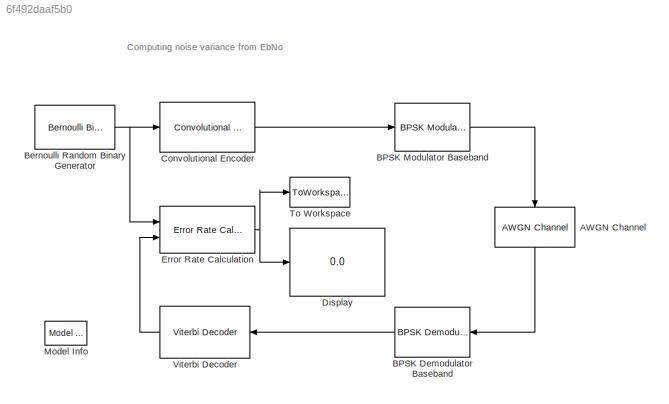
MODEL slx_6f492daaf5b0
KIND model
CONFIG PreLoadFcn = Ts = 1e-3; % Sample time\nEibNo = 4; % EbNo of information bits in dB\ncodeRate = 1/2; % from Trellis structure\nEbNo = EibNo - 10*log10(1/codeRate); %EbNo of coded bits in dB\nPi = 1; % input signal power in watts\n
BLOCK [Reference] AWGN Channel  REF=commchan3/AWGN
Channel
  EbNodB = EbNo
  EsNodB = -1
  InputProcessing = Columns as channels (frame based)
  Ports = [1, 1]
  Ps = Pi
  SNRdB = 10
  SourceBlock = commchan3/AWGN\nChannel
  SourceType = AWGN Channel
  Tsym = codeRate * Ts
  UserDataPersistent = on
  bitsPerSym = 1
  noiseMode = Signal to noise ratio  (Eb/No)
  seed = 1237
  variance = 1
BLOCK [Reference] BPSK Demodulator Baseband  REF=commdigbbndpm3/BPSK
Demodulator
Baseband
  DecType = Log-likelihood ratio
  Ph = 0
  Ports = [1, 1]
  SourceBlock = commdigbbndpm3/BPSK\nDemodulator\nBaseband
  SourceType = BPSK Demodulator Baseband
  VarSource = Dialog
  Variance = Pi/(10^(EbNo/10))
  derotateFactorDTMode = Same word length as input
  derotateFactorWordLen = 16
  outDtype = double
BLOCK [Reference] BPSK Modulator Baseband  REF=commdigbbndpm3/BPSK
Modulator
Baseband
  Ph = 0
  Ports = [1, 1]
  SourceBlock = commdigbbndpm3/BPSK\nModulator\nBaseband
  SourceType = BPSK Modulator Baseband
  outDtype = double
  outFracLen = 15
  outFracLenMode = Best precision
  outUDDataType = sfix(16)
  outWordLen = 16
BLOCK [Reference] Bernoulli Random Binary Generator  REF=commrandsrc2/Bernoulli Binary
Generator
  P = 0.5
  Ports = [0, 1]
  SourceBlock = commrandsrc2/Bernoulli Binary\nGenerator
  SourceType = Bernoulli Binary Generator
  Ts = Ts
  frameBased = on
  orient = off
  outDataType = double
  sampPerFrame = 1e3
  seed = 25741
BLOCK [Reference] Convolutional Encoder  REF=commcnvcod2/Convolutional
Encoder
  DelayedResetAction = off
  Ports = [1, 1]
  SourceBlock = commcnvcod2/Convolutional\nEncoder
  SourceType = Convolutional Encoder
  hasFinStPort = off
  hasIniStPort = off
  opMode = Continuous
  punctureVector = [1; 1; 0; 1; 0; 1]
  reset = Unused parameter value
  trellis = poly2trellis(7, [171 133])
  usePuncVector = off
BLOCK [Display] Display
  Decimation = 1
  Ports = [1]
BLOCK [Reference] Error Rate Calculation  REF=commsink2/Error Rate
Calculation
  N = 48
  PMode = Port
  Ports = [2, 1]
  RsMode2 = off
  SourceBlock = commsink2/Error Rate\nCalculation
  SourceType = Error Rate Calculation
  WsName = ErrorVec
  cp_mode = Entire frame
  maxBits = 1e7
  numErr = 100
  st_delay = 0
  stop = on
  subframe = []
BLOCK [Reference] Model Info  REF=simulink/Model-Wide
Utilities/Model Info
  BlockCM = none
  DisplayStringWithTags = Info
  Frame = on
  HorizontalTextAlignment = Center
  InitialBlockCM = None
  LeftAlignmentValue = 0.5
  MaskDisplayString = Info
  Ports = []
  SourceBlock = simulink/Model-Wide\nUtilities/Model Info
  SourceBlockDiagram = doc_noisevariance_ebno
  SourceType = CMBlock
  TagMaxNumber = 20
BLOCK [ToWorkspace] To Workspace
  MaxDataPoints = 1
  Ports = [1]
  SampleTime = -1
  VariableName = BER
BLOCK [Reference] Viterbi Decoder  REF=commcnvcod2/Viterbi Decoder
  Ports = [1, 1]
  SourceBlock = commcnvcod2/Viterbi Decoder
  SourceType = Viterbi Decoder
  dectype = Unquantized
  delayedResetAction = off
  erasures = off
  isPunctured = off
  nsdecb = 3
  opmode = Continuous
  outDataType = double
  punctureVector = [1; 1; 0; 1; 0; 1]
  reset = off
  runSigValErrCheck = off
  smWordLength = 16
  tbdepth = 48
  trellis = poly2trellis(7, [171 133])
ANNOTATION (root): Computing noise variance from EbNo
LINE AWGN Channel:1 -> BPSK Demodulator Baseband:1
LINE BPSK Demodulator Baseband:1 -> Viterbi Decoder:1
LINE BPSK Modulator Baseband:1 -> AWGN Channel:1
NET Bernoulli Random Binary Generator:1 -> Convolutional Encoder:1, Error Rate Calculation:1
LINE Convolutional Encoder:1 -> BPSK Modulator Baseband:1
NET Error Rate Calculation:1 -> Display:1, To Workspace:1
LINE Viterbi Decoder:1 -> Error Rate Calculation:2
note: NET lines group one-source signal fan-out (src -> all destinations, sorted); 1:1 wires keep LINE
